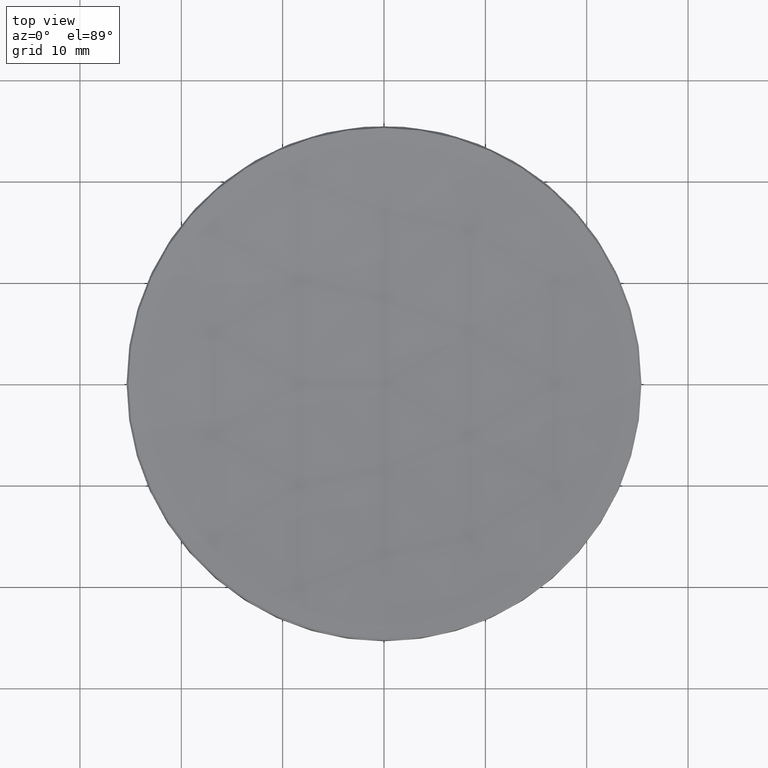
[diagram: clean part render]
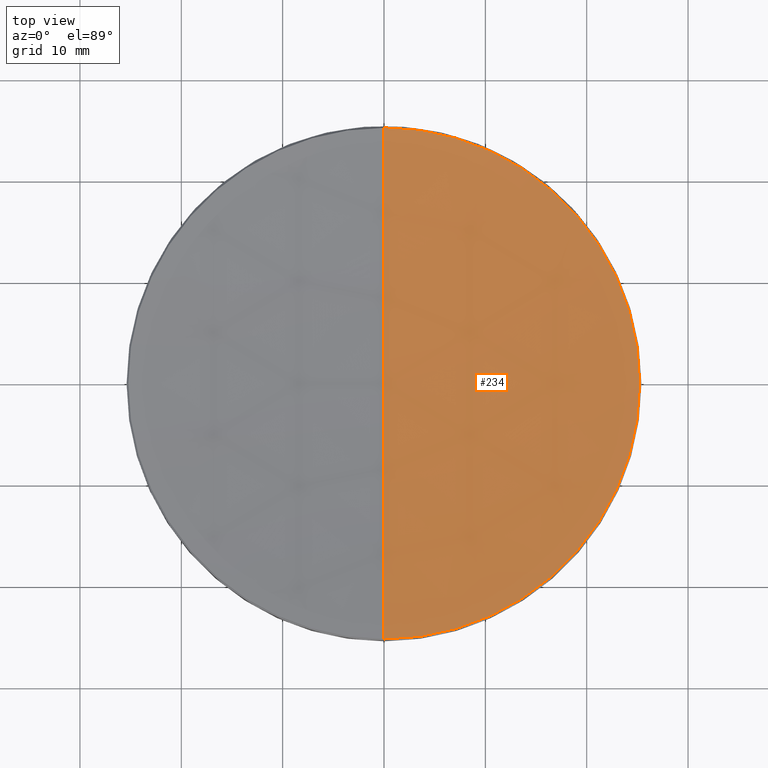
[diagram: same view with one face highlighted and labeled with its STEP entity id]
A machine part, top view. The second image highlights one B-rep face of the part: STEP entity #234.
In plain terms, the highlighted spherical surface has radius 224.67 mm.
Its self-contained STEP definition (entity closure, byte-faithful):
#5 = CARTESIAN_POINT ( 'NONE',  ( 0.000000000000000000, 1.375706981822179092E-14, 14.45958786863357837 ) ) ;
#8 = CIRCLE ( 'NONE', #58, 25.22036627463847935 ) ;
#35 = VERTEX_POINT ( 'NONE', #274 ) ;
#43 = VERTEX_POINT ( 'NONE', #173 ) ;
#44 = CIRCLE ( 'NONE', #210, 224.6699999999999875 ) ;
#48 = CARTESIAN_POINT ( 'NONE',  ( 0.000000000000000000, 0.000000000000000000, 239.1295878686335641 ) ) ;
#49 = CARTESIAN_POINT ( 'NONE',  ( 0.000000000000000000, 0.000000000000000000, 239.1295878686335641 ) ) ;
#52 = AXIS2_PLACEMENT_3D ( 'NONE', #71, #202, #157 ) ;
#58 = AXIS2_PLACEMENT_3D ( 'NONE', #132, #74, #155 ) ;
#64 = EDGE_CURVE ( 'NONE', #148, #35, #44, .T. ) ;
#71 = CARTESIAN_POINT ( 'NONE',  ( 0.000000000000000000, 0.000000000000000000, 239.1295878686335641 ) ) ;
#74 = DIRECTION ( 'NONE',  ( -0.000000000000000000, -0.000000000000000000, 1.000000000000000000 ) ) ;
#93 = DIRECTION ( 'NONE',  ( -0.000000000000000000, -0.000000000000000000, 1.000000000000000000 ) ) ;
#102 = VERTEX_POINT ( 'NONE', #223 ) ;
#104 = ORIENTED_EDGE ( 'NONE', *, *, #240, .T. ) ;
#112 = CARTESIAN_POINT ( 'NONE',  ( 0.000000000000000000, 0.000000000000000000, 15.87963372536149720 ) ) ;
#118 = AXIS2_PLACEMENT_3D ( 'NONE', #112, #93, #200 ) ;
#129 = ORIENTED_EDGE ( 'NONE', *, *, #195, .T. ) ;
#132 = CARTESIAN_POINT ( 'NONE',  ( 0.000000000000000000, 0.000000000000000000, 15.87963372536149720 ) ) ;
#134 = DIRECTION ( 'NONE',  ( 0.000000000000000000, 1.000000000000000000, 0.000000000000000000 ) ) ;
#136 = EDGE_CURVE ( 'NONE', #102, #35, #187, .T. ) ;
#146 = ORIENTED_EDGE ( 'NONE', *, *, #136, .T. ) ;
#148 = VERTEX_POINT ( 'NONE', #5 ) ;
#152 = FACE_OUTER_BOUND ( 'NONE', #215, .T. ) ;
#155 = DIRECTION ( 'NONE',  ( 1.000000000000000000, 0.000000000000000000, 0.000000000000000000 ) ) ;
#157 = DIRECTION ( 'NONE',  ( -1.224646799147353207E-16, -1.000000000000000000, 0.000000000000000000 ) ) ;
#173 = CARTESIAN_POINT ( 'NONE',  ( -3.088604083155972347E-15, -25.22036627463835501, 15.87963372536149720 ) ) ;
#176 = DIRECTION ( 'NONE',  ( 0.000000000000000000, 0.000000000000000000, -1.000000000000000000 ) ) ;
#179 = AXIS2_PLACEMENT_3D ( 'NONE', #49, #262, #134 ) ;
#187 = CIRCLE ( 'NONE', #118, 25.22036627463847935 ) ;
#195 = EDGE_CURVE ( 'NONE', #148, #43, #263, .T. ) ;
#200 = DIRECTION ( 'NONE',  ( 1.000000000000000000, 0.000000000000000000, 0.000000000000000000 ) ) ;
#202 = DIRECTION ( 'NONE',  ( -1.000000000000000000, 1.224646799147353207E-16, 0.000000000000000000 ) ) ;
#208 = SPHERICAL_SURFACE ( 'NONE', #179, 224.6699999999999875 ) ;
#210 = AXIS2_PLACEMENT_3D ( 'NONE', #48, #225, #176 ) ;
#215 = EDGE_LOOP ( 'NONE', ( #220, #129, #104, #146 ) ) ;
#220 = ORIENTED_EDGE ( 'NONE', *, *, #64, .F. ) ;
#223 = CARTESIAN_POINT ( 'NONE',  ( 25.22036627463847935, 3.099603476495131903E-15, 15.87963372536149720 ) ) ;
#225 = DIRECTION ( 'NONE',  ( 1.000000000000000000, 0.000000000000000000, 0.000000000000000000 ) ) ;
#234 = ADVANCED_FACE ( 'NONE', ( #152 ), #208, .F. ) ;
#240 = EDGE_CURVE ( 'NONE', #43, #102, #8, .T. ) ;
#262 = DIRECTION ( 'NONE',  ( -1.000000000000000000, 0.000000000000000000, 0.000000000000000000 ) ) ;
#263 = CIRCLE ( 'NONE', #52, 224.6699999999999875 ) ;
#274 = CARTESIAN_POINT ( 'NONE',  ( 0.000000000000000000, 25.22036627463835501, 15.87963372536149720 ) ) ;